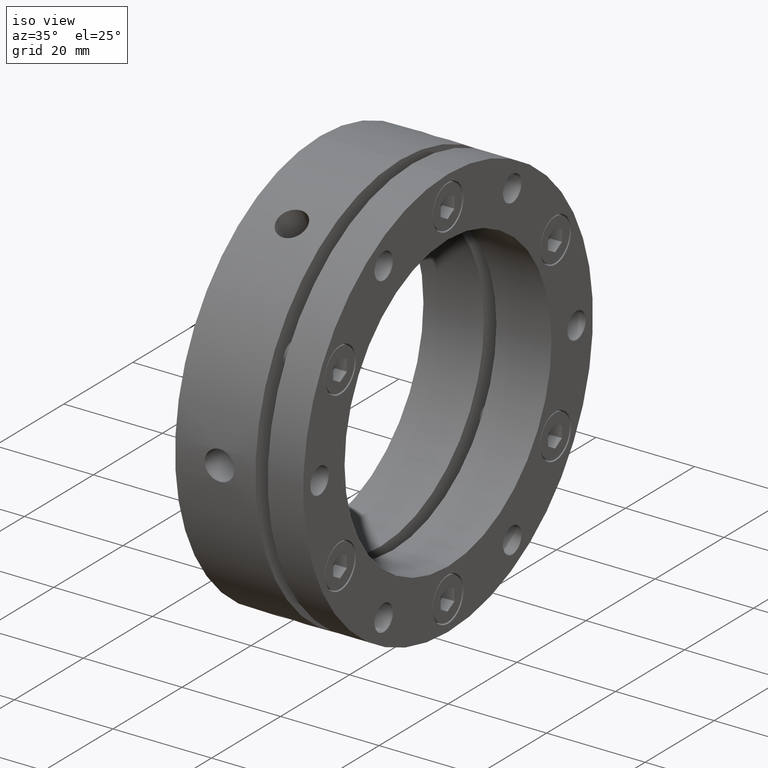
[diagram: clean part render]
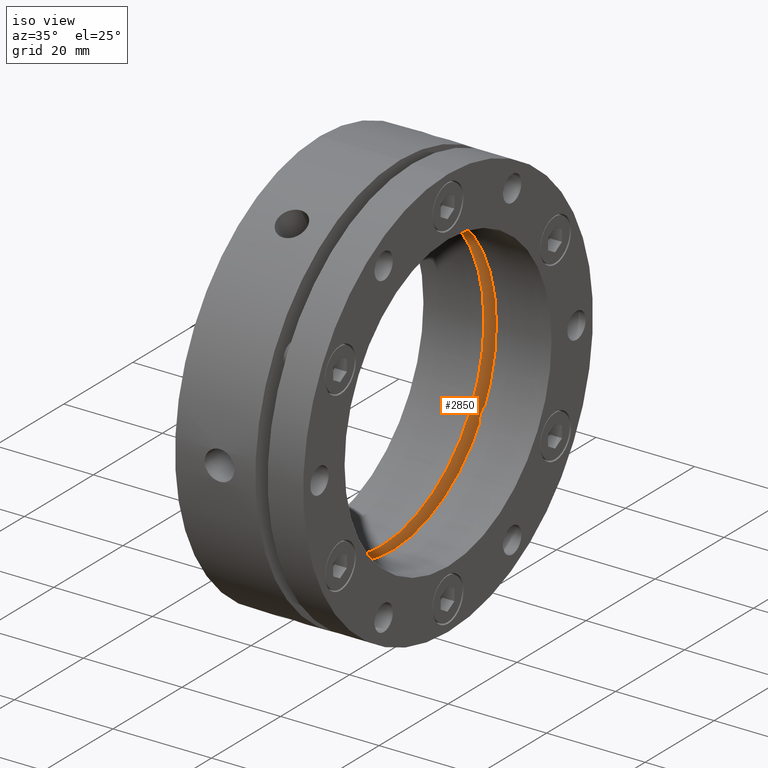
[diagram: same view with one face highlighted and labeled with its STEP entity id]
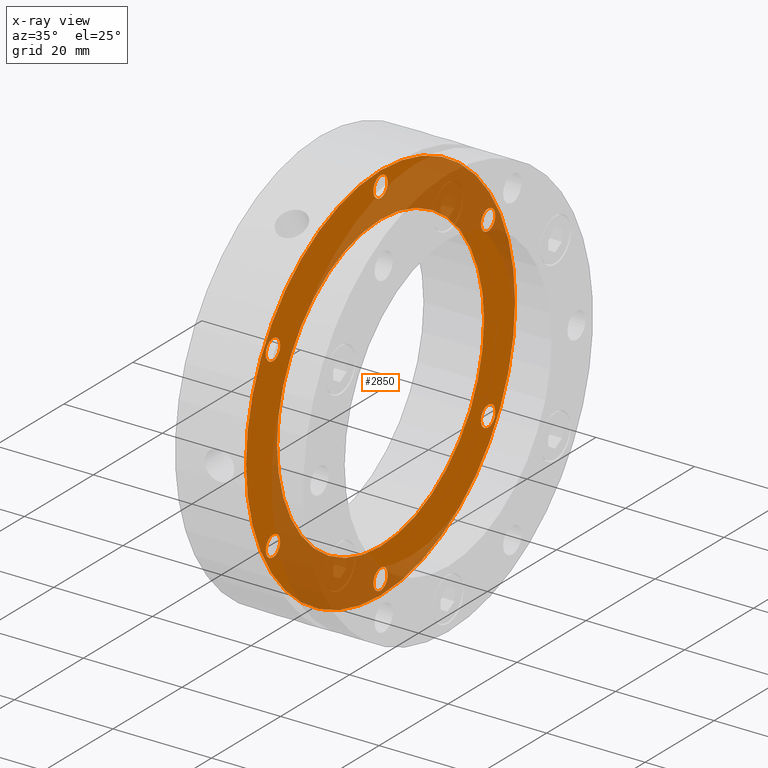
[diagram: x-ray of the same camera — body ghosted, the highlighted face saturated]
A machine part, iso view. The second image highlights one B-rep face of the part: STEP entity #2850.
The next image is the same camera in x-ray: the body ghosted, the highlighted face saturated — about 40% of this face is hidden behind the body in this view.
In plain terms, the highlighted planar face has unit normal (-1, 0, 0).
Its self-contained STEP definition (entity closure, byte-faithful):
#36 = DIRECTION ( 'NONE',  ( 0.0000000000000000000, 0.0000000000000000000, 1.000000000000000000 ) ) ;
#111 = VERTEX_POINT ( 'NONE', #3071 ) ;
#277 = CARTESIAN_POINT ( 'NONE',  ( 12.30000000000001500, 0.0000000000000000000, 36.00000000000002800 ) ) ;
#278 = DIRECTION ( 'NONE',  ( -1.000000000000000000, 0.0000000000000000000, 0.0000000000000000000 ) ) ;
#279 = DIRECTION ( 'NONE',  ( 0.0000000000000000000, 0.0000000000000000000, 1.000000000000000000 ) ) ;
#280 = CARTESIAN_POINT ( 'NONE',  ( 12.30000000000001500, -31.17691453623980600, 18.00000000000001400 ) ) ;
#281 = DIRECTION ( 'NONE',  ( -1.000000000000000000, 0.0000000000000000000, 0.0000000000000000000 ) ) ;
#282 = DIRECTION ( 'NONE',  ( 0.0000000000000000000, 0.0000000000000000000, 1.000000000000000000 ) ) ;
#283 = CARTESIAN_POINT ( 'NONE',  ( 12.30000000000001500, -31.17691453623981700, -18.00000000000000700 ) ) ;
#284 = DIRECTION ( 'NONE',  ( -1.000000000000000000, 0.0000000000000000000, 0.0000000000000000000 ) ) ;
#285 = DIRECTION ( 'NONE',  ( 0.0000000000000000000, 0.0000000000000000000, 1.000000000000000000 ) ) ;
#286 = CARTESIAN_POINT ( 'NONE',  ( 12.30000000000001500, 31.17691453623979900, -18.00000000000002800 ) ) ;
#287 = DIRECTION ( 'NONE',  ( -1.000000000000000000, 0.0000000000000000000, 0.0000000000000000000 ) ) ;
#288 = DIRECTION ( 'NONE',  ( 0.0000000000000000000, 0.0000000000000000000, 1.000000000000000000 ) ) ;
#289 = CARTESIAN_POINT ( 'NONE',  ( 12.30000000000001500, -6.661337999999999900E-015, -36.00000000000002800 ) ) ;
#290 = DIRECTION ( 'NONE',  ( -1.000000000000000000, 0.0000000000000000000, 0.0000000000000000000 ) ) ;
#291 = DIRECTION ( 'NONE',  ( 0.0000000000000000000, 0.0000000000000000000, 1.000000000000000000 ) ) ;
#292 = CARTESIAN_POINT ( 'NONE',  ( 12.30000000000001500, 0.0000000000000000000, 0.0000000000000000000 ) ) ;
#293 = DIRECTION ( 'NONE',  ( -1.000000000000000000, -0.0000000000000000000, -0.0000000000000000000 ) ) ;
#294 = DIRECTION ( 'NONE',  ( 0.0000000000000000000, 0.0000000000000000000, -1.000000000000000000 ) ) ;
#295 = CARTESIAN_POINT ( 'NONE',  ( 12.30000000000001500, 31.17691453623983500, 17.99999999999998900 ) ) ;
#296 = DIRECTION ( 'NONE',  ( -1.000000000000000000, 0.0000000000000000000, 0.0000000000000000000 ) ) ;
#297 = DIRECTION ( 'NONE',  ( 0.0000000000000000000, 0.0000000000000000000, 1.000000000000000000 ) ) ;
#410 = CARTESIAN_POINT ( 'NONE',  ( 12.30000000000001500, -6.661337999999999900E-015, -36.00000000000002800 ) ) ;
#411 = DIRECTION ( 'NONE',  ( -1.000000000000000000, 0.0000000000000000000, 0.0000000000000000000 ) ) ;
#412 = DIRECTION ( 'NONE',  ( 0.0000000000000000000, 0.0000000000000000000, 1.000000000000000000 ) ) ;
#1163 = AXIS2_PLACEMENT_3D ( 'NONE', #2478, #2479, #36 ) ;
#1173 = AXIS2_PLACEMENT_3D ( 'NONE', #3531, #3532, #3533 ) ;
#1202 = AXIS2_PLACEMENT_3D ( 'NONE', #3646, #3647, #3648 ) ;
#1203 = AXIS2_PLACEMENT_3D ( 'NONE', #3653, #3654, #3655 ) ;
#1207 = AXIS2_PLACEMENT_3D ( 'NONE', #3676, #3677, #3678 ) ;
#1208 = AXIS2_PLACEMENT_3D ( 'NONE', #3714, #3715, #3716 ) ;
#1233 = ORIENTED_EDGE ( 'NONE', *, *, #4610, .T. ) ;
#1235 = ORIENTED_EDGE ( 'NONE', *, *, #2766, .T. ) ;
#1236 = ORIENTED_EDGE ( 'NONE', *, *, #4615, .T. ) ;
#1241 = ORIENTED_EDGE ( 'NONE', *, *, #4729, .T. ) ;
#1250 = ORIENTED_EDGE ( 'NONE', *, *, #2764, .T. ) ;
#1269 = ORIENTED_EDGE ( 'NONE', *, *, #2776, .T. ) ;
#1295 = ORIENTED_EDGE ( 'NONE', *, *, #1528, .T. ) ;
#1311 = ORIENTED_EDGE ( 'NONE', *, *, #1495, .F. ) ;
#1317 = ORIENTED_EDGE ( 'NONE', *, *, #2169, .F. ) ;
#1325 = ORIENTED_EDGE ( 'NONE', *, *, #4612, .T. ) ;
#1333 = ORIENTED_EDGE ( 'NONE', *, *, #4611, .T. ) ;
#1337 = ORIENTED_EDGE ( 'NONE', *, *, #2778, .T. ) ;
#1343 = ORIENTED_EDGE ( 'NONE', *, *, #4609, .T. ) ;
#1354 = ORIENTED_EDGE ( 'NONE', *, *, #4614, .T. ) ;
#1394 = ORIENTED_EDGE ( 'NONE', *, *, #4613, .T. ) ;
#1409 = ORIENTED_EDGE ( 'NONE', *, *, #1500, .T. ) ;
#1468 = EDGE_LOOP ( 'NONE', ( #1317, #1311 ) ) ;
#1469 = EDGE_LOOP ( 'NONE', ( #1394, #1241 ) ) ;
#1470 = EDGE_LOOP ( 'NONE', ( #1236, #1269 ) ) ;
#1471 = EDGE_LOOP ( 'NONE', ( #1250, #1354 ) ) ;
#1472 = EDGE_LOOP ( 'NONE', ( #1333, #1295 ) ) ;
#1473 = EDGE_LOOP ( 'NONE', ( #1343, #1337 ) ) ;
#1474 = EDGE_LOOP ( 'NONE', ( #1325, #1409 ) ) ;
#1478 = EDGE_LOOP ( 'NONE', ( #1233, #1235 ) ) ;
#1495 = EDGE_CURVE ( 'NONE', #4495, #4494, #2066, .T. ) ;
#1500 = EDGE_CURVE ( 'NONE', #2802, #2790, #2077, .T. ) ;
#1528 = EDGE_CURVE ( 'NONE', #2785, #2786, #2118, .T. ) ;
#1590 = AXIS2_PLACEMENT_3D ( 'NONE', #277, #278, #279 ) ;
#1591 = AXIS2_PLACEMENT_3D ( 'NONE', #280, #281, #282 ) ;
#1592 = AXIS2_PLACEMENT_3D ( 'NONE', #283, #284, #285 ) ;
#1593 = AXIS2_PLACEMENT_3D ( 'NONE', #286, #287, #288 ) ;
#1594 = AXIS2_PLACEMENT_3D ( 'NONE', #289, #290, #291 ) ;
#1595 = AXIS2_PLACEMENT_3D ( 'NONE', #292, #293, #294 ) ;
#1596 = AXIS2_PLACEMENT_3D ( 'NONE', #295, #296, #297 ) ;
#1843 = AXIS2_PLACEMENT_3D ( 'NONE', #3897, #3895, #3901 ) ;
#2066 = CIRCLE ( 'NONE', #3007, 39.00000000000000700 ) ;
#2077 = CIRCLE ( 'NONE', #3009, 2.066999999999999300 ) ;
#2118 = CIRCLE ( 'NONE', #1163, 2.066999999999999300 ) ;
#2139 = CIRCLE ( 'NONE', #1173, 39.00000000000000700 ) ;
#2169 = EDGE_CURVE ( 'NONE', #4494, #4495, #2139, .T. ) ;
#2220 = CIRCLE ( 'NONE', #1202, 30.00000000000000000 ) ;
#2221 = CIRCLE ( 'NONE', #1203, 2.066999999999999300 ) ;
#2238 = CIRCLE ( 'NONE', #1207, 2.066999999999999300 ) ;
#2240 = CIRCLE ( 'NONE', #1208, 2.066999999999999300 ) ;
#2327 = FACE_BOUND ( 'NONE', #1471, .T. ) ;
#2329 = FACE_BOUND ( 'NONE', #1478, .T. ) ;
#2331 = FACE_BOUND ( 'NONE', #1474, .T. ) ;
#2332 = FACE_BOUND ( 'NONE', #1472, .T. ) ;
#2333 = FACE_BOUND ( 'NONE', #1473, .T. ) ;
#2335 = FACE_BOUND ( 'NONE', #1469, .T. ) ;
#2337 = FACE_BOUND ( 'NONE', #1470, .T. ) ;
#2338 = FACE_OUTER_BOUND ( 'NONE', #1468, .T. ) ;
#2478 = CARTESIAN_POINT ( 'NONE',  ( 12.30000000000001500, -31.17691453623981700, -18.00000000000000700 ) ) ;
#2479 = DIRECTION ( 'NONE',  ( -1.000000000000000000, 0.0000000000000000000, 0.0000000000000000000 ) ) ;
#2605 = CIRCLE ( 'NONE', #1595, 30.00000000000000000 ) ;
#2613 = CIRCLE ( 'NONE', #1590, 2.066999999999999300 ) ;
#2614 = CIRCLE ( 'NONE', #1591, 2.066999999999999300 ) ;
#2615 = CIRCLE ( 'NONE', #1592, 2.066999999999999300 ) ;
#2616 = CIRCLE ( 'NONE', #1593, 2.066999999999999300 ) ;
#2617 = CIRCLE ( 'NONE', #1594, 2.066999999999999300 ) ;
#2619 = CIRCLE ( 'NONE', #1596, 2.066999999999999300 ) ;
#2697 = CIRCLE ( 'NONE', #4545, 2.066999999999999300 ) ;
#2764 = EDGE_CURVE ( 'NONE', #2798, #2809, #2220, .T. ) ;
#2766 = EDGE_CURVE ( 'NONE', #2783, #2784, #2221, .T. ) ;
#2776 = EDGE_CURVE ( 'NONE', #2792, #111, #2238, .T. ) ;
#2778 = EDGE_CURVE ( 'NONE', #2801, #2799, #2240, .T. ) ;
#2783 = VERTEX_POINT ( 'NONE', #3756 ) ;
#2784 = VERTEX_POINT ( 'NONE', #3758 ) ;
#2785 = VERTEX_POINT ( 'NONE', #3759 ) ;
#2786 = VERTEX_POINT ( 'NONE', #3757 ) ;
#2790 = VERTEX_POINT ( 'NONE', #3751 ) ;
#2792 = VERTEX_POINT ( 'NONE', #3763 ) ;
#2795 = VERTEX_POINT ( 'NONE', #3766 ) ;
#2798 = VERTEX_POINT ( 'NONE', #3769 ) ;
#2799 = VERTEX_POINT ( 'NONE', #3770 ) ;
#2801 = VERTEX_POINT ( 'NONE', #3772 ) ;
#2802 = VERTEX_POINT ( 'NONE', #3773 ) ;
#2804 = VERTEX_POINT ( 'NONE', #3775 ) ;
#2809 = VERTEX_POINT ( 'NONE', #3780 ) ;
#2850 = ADVANCED_FACE ( 'NONE', ( #2327, #2333, #2329, #2332, #2335, #2331, #2337, #2338 ), #3899, .F. ) ;
#3007 = AXIS2_PLACEMENT_3D ( 'NONE', #3296, #3297, #3298 ) ;
#3009 = AXIS2_PLACEMENT_3D ( 'NONE', #3308, #3309, #3310 ) ;
#3071 = CARTESIAN_POINT ( 'NONE',  ( 12.30000000000001500, 31.17691453623983500, 20.06699999999998600 ) ) ;
#3296 = CARTESIAN_POINT ( 'NONE',  ( 12.30000000000000800, 0.0000000000000000000, 0.0000000000000000000 ) ) ;
#3297 = DIRECTION ( 'NONE',  ( -1.000000000000000000, 0.0000000000000000000, 0.0000000000000000000 ) ) ;
#3298 = DIRECTION ( 'NONE',  ( 0.0000000000000000000, 0.0000000000000000000, 1.000000000000000000 ) ) ;
#3308 = CARTESIAN_POINT ( 'NONE',  ( 12.30000000000001500, 31.17691453623979900, -18.00000000000002800 ) ) ;
#3309 = DIRECTION ( 'NONE',  ( -1.000000000000000000, 0.0000000000000000000, 0.0000000000000000000 ) ) ;
#3310 = DIRECTION ( 'NONE',  ( 0.0000000000000000000, 0.0000000000000000000, 1.000000000000000000 ) ) ;
#3531 = CARTESIAN_POINT ( 'NONE',  ( 12.30000000000000800, 0.0000000000000000000, 0.0000000000000000000 ) ) ;
#3532 = DIRECTION ( 'NONE',  ( -1.000000000000000000, 0.0000000000000000000, 0.0000000000000000000 ) ) ;
#3533 = DIRECTION ( 'NONE',  ( 0.0000000000000000000, 0.0000000000000000000, 1.000000000000000000 ) ) ;
#3646 = CARTESIAN_POINT ( 'NONE',  ( 12.30000000000001500, 0.0000000000000000000, 0.0000000000000000000 ) ) ;
#3647 = DIRECTION ( 'NONE',  ( -1.000000000000000000, -0.0000000000000000000, -0.0000000000000000000 ) ) ;
#3648 = DIRECTION ( 'NONE',  ( 0.0000000000000000000, 0.0000000000000000000, -1.000000000000000000 ) ) ;
#3653 = CARTESIAN_POINT ( 'NONE',  ( 12.30000000000001500, -31.17691453623980600, 18.00000000000001400 ) ) ;
#3654 = DIRECTION ( 'NONE',  ( -1.000000000000000000, 0.0000000000000000000, 0.0000000000000000000 ) ) ;
#3655 = DIRECTION ( 'NONE',  ( 0.0000000000000000000, 0.0000000000000000000, 1.000000000000000000 ) ) ;
#3676 = CARTESIAN_POINT ( 'NONE',  ( 12.30000000000001500, 31.17691453623983500, 17.99999999999998900 ) ) ;
#3677 = DIRECTION ( 'NONE',  ( -1.000000000000000000, 0.0000000000000000000, 0.0000000000000000000 ) ) ;
#3678 = DIRECTION ( 'NONE',  ( 0.0000000000000000000, 0.0000000000000000000, 1.000000000000000000 ) ) ;
#3714 = CARTESIAN_POINT ( 'NONE',  ( 12.30000000000001500, 0.0000000000000000000, 36.00000000000002800 ) ) ;
#3715 = DIRECTION ( 'NONE',  ( -1.000000000000000000, 0.0000000000000000000, 0.0000000000000000000 ) ) ;
#3716 = DIRECTION ( 'NONE',  ( 0.0000000000000000000, 0.0000000000000000000, 1.000000000000000000 ) ) ;
#3751 = CARTESIAN_POINT ( 'NONE',  ( 12.30000000000001500, 31.17691453623979900, -15.93300000000003000 ) ) ;
#3756 = CARTESIAN_POINT ( 'NONE',  ( 12.30000000000001500, -31.17691453623980600, 15.93300000000001600 ) ) ;
#3757 = CARTESIAN_POINT ( 'NONE',  ( 12.30000000000001500, -31.17691453623981700, -15.93300000000000700 ) ) ;
#3758 = CARTESIAN_POINT ( 'NONE',  ( 12.30000000000001500, -31.17691453623980600, 20.06700000000001400 ) ) ;
#3759 = CARTESIAN_POINT ( 'NONE',  ( 12.30000000000001500, -31.17691453623981700, -20.06700000000000400 ) ) ;
#3763 = CARTESIAN_POINT ( 'NONE',  ( 12.30000000000001500, 31.17691453623983500, 15.93299999999998900 ) ) ;
#3766 = CARTESIAN_POINT ( 'NONE',  ( 12.30000000000001500, -6.661337999999999900E-015, -33.93300000000002800 ) ) ;
#3769 = CARTESIAN_POINT ( 'NONE',  ( 12.30000000000001500, 0.0000000000000000000, -30.00000000000000000 ) ) ;
#3770 = CARTESIAN_POINT ( 'NONE',  ( 12.30000000000001500, 0.0000000000000000000, 38.06700000000002100 ) ) ;
#3772 = CARTESIAN_POINT ( 'NONE',  ( 12.30000000000001500, 2.531344933837580300E-016, 33.93300000000002800 ) ) ;
#3773 = CARTESIAN_POINT ( 'NONE',  ( 12.30000000000001500, 31.17691453623979900, -20.06700000000002900 ) ) ;
#3775 = CARTESIAN_POINT ( 'NONE',  ( 12.30000000000001500, -6.408203506616242300E-015, -38.06700000000002100 ) ) ;
#3780 = CARTESIAN_POINT ( 'NONE',  ( 12.30000000000001500, 3.673940397442059200E-015, 30.00000000000000000 ) ) ;
#3895 = DIRECTION ( 'NONE',  ( -1.000000000000000000, 0.0000000000000000000, 0.0000000000000000000 ) ) ;
#3897 = CARTESIAN_POINT ( 'NONE',  ( 12.30000000000001500, 19.50000000000000400, 0.0000000000000000000 ) ) ;
#3899 = PLANE ( 'NONE',  #1843 ) ;
#3901 = DIRECTION ( 'NONE',  ( 0.0000000000000000000, 0.0000000000000000000, 1.000000000000000000 ) ) ;
#4248 = CARTESIAN_POINT ( 'NONE',  ( 12.30000000000000800, 4.776122516674678700E-015, -39.00000000000000700 ) ) ;
#4254 = CARTESIAN_POINT ( 'NONE',  ( 12.30000000000000800, 0.0000000000000000000, 39.00000000000000700 ) ) ;
#4494 = VERTEX_POINT ( 'NONE', #4254 ) ;
#4495 = VERTEX_POINT ( 'NONE', #4248 ) ;
#4545 = AXIS2_PLACEMENT_3D ( 'NONE', #410, #411, #412 ) ;
#4609 = EDGE_CURVE ( 'NONE', #2799, #2801, #2613, .T. ) ;
#4610 = EDGE_CURVE ( 'NONE', #2784, #2783, #2614, .T. ) ;
#4611 = EDGE_CURVE ( 'NONE', #2786, #2785, #2615, .T. ) ;
#4612 = EDGE_CURVE ( 'NONE', #2790, #2802, #2616, .T. ) ;
#4613 = EDGE_CURVE ( 'NONE', #2795, #2804, #2617, .T. ) ;
#4614 = EDGE_CURVE ( 'NONE', #2809, #2798, #2605, .T. ) ;
#4615 = EDGE_CURVE ( 'NONE', #111, #2792, #2619, .T. ) ;
#4729 = EDGE_CURVE ( 'NONE', #2804, #2795, #2697, .T. ) ;